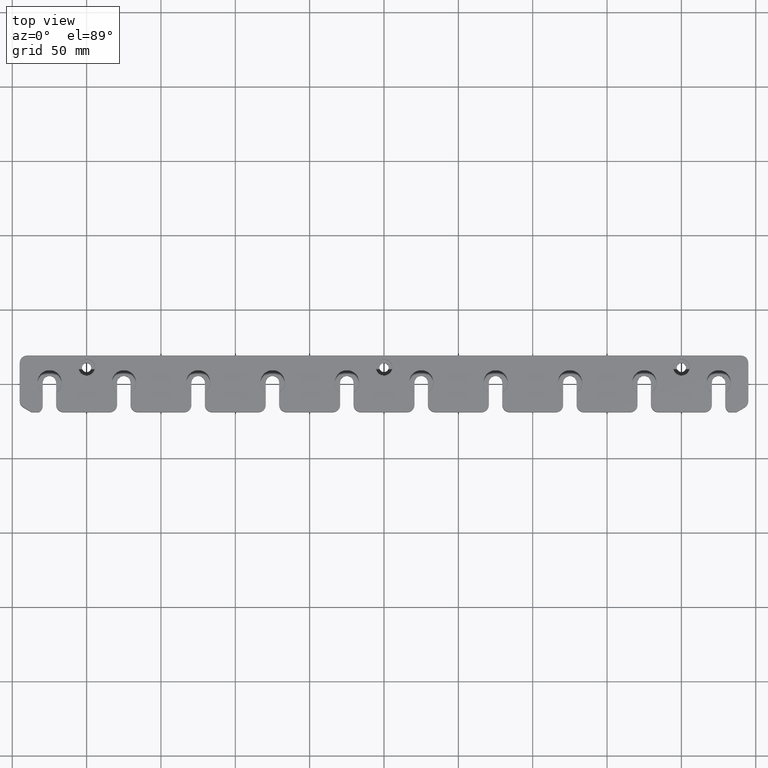
[diagram: clean part render]
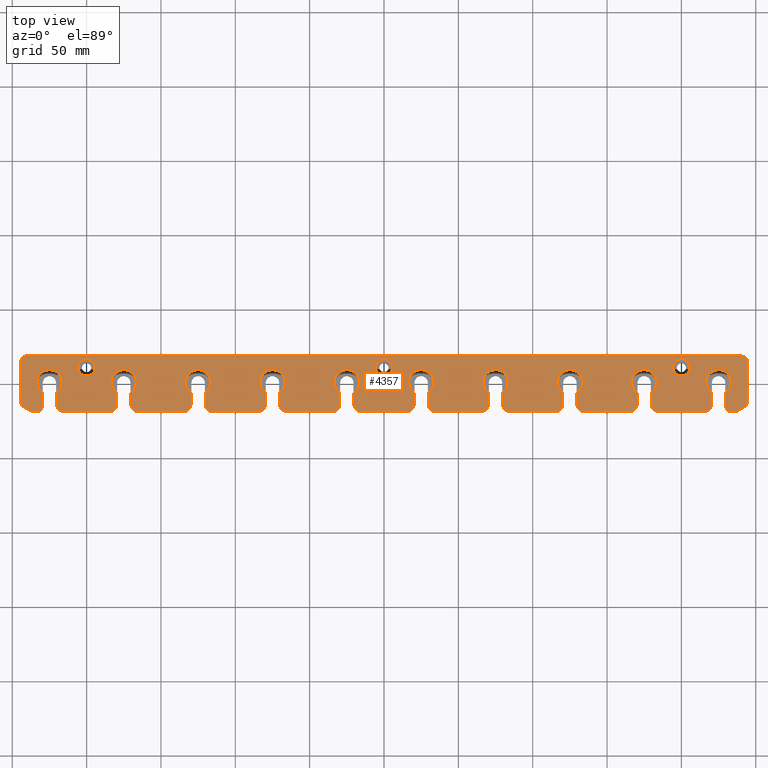
[diagram: same view with one face highlighted and labeled with its STEP entity id]
A machine part, top view. The second image highlights one B-rep face of the part: STEP entity #4357.
In plain terms, the highlighted planar face has unit normal (-0, 0, -1).
Its self-contained STEP definition (entity closure, byte-faithful):
#43 = CARTESIAN_POINT ( 'NONE',  ( -134.4999999999999716, -18.70000000000008811, 20.00000000000000000 ) ) ;
#54 = VERTEX_POINT ( 'NONE', #1759 ) ;
#60 = VERTEX_POINT ( 'NONE', #4454 ) ;
#75 = DIRECTION ( 'NONE',  ( -1.000000000000000000, 0.000000000000000000, 0.000000000000000000 ) ) ;
#94 = EDGE_CURVE ( 'NONE', #770, #3990, #2609, .T. ) ;
#98 = AXIS2_PLACEMENT_3D ( 'NONE', #6631, #5580, #2834 ) ;
#99 = CARTESIAN_POINT ( 'NONE',  ( -234.5000000000000000, -14.66987298107780546, 20.00000000000000000 ) ) ;
#105 = DIRECTION ( 'NONE',  ( -1.000000000000000000, 0.000000000000000000, 0.000000000000000000 ) ) ;
#110 = EDGE_CURVE ( 'NONE', #5151, #1189, #5787, .T. ) ;
#119 = LINE ( 'NONE', #6738, #3336 ) ;
#125 = ORIENTED_EDGE ( 'NONE', *, *, #6165, .T. ) ;
#135 = ORIENTED_EDGE ( 'NONE', *, *, #5148, .T. ) ;
#150 = VECTOR ( 'NONE', #6949, 1000.000000000000000 ) ;
#158 = CARTESIAN_POINT ( 'NONE',  ( 165.5000000000000000, -13.99999999999999822, 20.00000000000000000 ) ) ;
#160 = CARTESIAN_POINT ( 'NONE',  ( 115.5000000000000000, -18.70000000000008811, 20.00000000000000000 ) ) ;
#189 = CIRCLE ( 'NONE', #4071, 8.449999999999915801 ) ;
#194 = CARTESIAN_POINT ( 'NONE',  ( -165.4999999999999716, -13.99999999999999822, 20.00000000000000000 ) ) ;
#206 = LINE ( 'NONE', #893, #4278 ) ;
#209 = CARTESIAN_POINT ( 'NONE',  ( 179.7999999999998693, -5.954315207121470443, 20.00000000000000000 ) ) ;
#221 = CARTESIAN_POINT ( 'NONE',  ( 129.7999999999998977, -14.00000000000001243, 20.00000000000000000 ) ) ;
#235 = VERTEX_POINT ( 'NONE', #6228 ) ;
#243 = AXIS2_PLACEMENT_3D ( 'NONE', #1725, #4499, #1256 ) ;
#267 = CARTESIAN_POINT ( 'NONE',  ( 120.2000000000000313, 1.000000000000719425, 20.00000000000000000 ) ) ;
#276 = VECTOR ( 'NONE', #3130, 1000.000000000000000 ) ;
#299 = CARTESIAN_POINT ( 'NONE',  ( -174.9999999999998863, 1.000000000000000888, 20.00000000000000000 ) ) ;
#373 = CARTESIAN_POINT ( 'NONE',  ( 129.7999999999998977, -14.00000000000001243, 20.00000000000000000 ) ) ;
#398 = AXIS2_PLACEMENT_3D ( 'NONE', #299, #6719, #1395 ) ;
#403 = VERTEX_POINT ( 'NONE', #1567 ) ;
#407 = ORIENTED_EDGE ( 'NONE', *, *, #2469, .T. ) ;
#411 = VECTOR ( 'NONE', #1213, 1000.000000000000000 ) ;
#412 = EDGE_CURVE ( 'NONE', #1292, #3824, #3267, .T. ) ;
#437 = ORIENTED_EDGE ( 'NONE', *, *, #1007, .T. ) ;
#441 = ORIENTED_EDGE ( 'NONE', *, *, #1264, .T. ) ;
#444 = DIRECTION ( 'NONE',  ( -1.000000000000000000, 0.000000000000000000, 0.000000000000000000 ) ) ;
#448 = VECTOR ( 'NONE', #3409, 1000.000000000000000 ) ;
#460 = VERTEX_POINT ( 'NONE', #4671 ) ;
#478 = CARTESIAN_POINT ( 'NONE',  ( 179.7999999999998693, -14.00000000000000533, 20.00000000000000000 ) ) ;
#490 = VERTEX_POINT ( 'NONE', #552 ) ;
#500 = DIRECTION ( 'NONE',  ( 1.387778780781445676E-15, -1.000000000000000000, 0.000000000000000000 ) ) ;
#510 = ORIENTED_EDGE ( 'NONE', *, *, #2898, .T. ) ;
#512 = CARTESIAN_POINT ( 'NONE',  ( -124.9999999999998863, 1.000000000000000888, 20.00000000000000000 ) ) ;
#541 = VECTOR ( 'NONE', #5789, 1000.000000000000000 ) ;
#544 = EDGE_CURVE ( 'NONE', #460, #460, #567, .T. ) ;
#549 = CIRCLE ( 'NONE', #729, 8.449999999999901590 ) ;
#552 = CARTESIAN_POINT ( 'NONE',  ( -215.5000000000000000, -18.70000000000008811, 20.00000000000000000 ) ) ;
#567 = CIRCLE ( 'NONE', #1409, 5.799999999999972289 ) ;
#568 = DIRECTION ( 'NONE',  ( -0.000000000000000000, -0.000000000000000000, -1.000000000000000000 ) ) ;
#577 = FACE_BOUND ( 'NONE', #5188, .T. ) ;
#582 = EDGE_CURVE ( 'NONE', #54, #1675, #2355, .T. ) ;
#592 = CARTESIAN_POINT ( 'NONE',  ( -34.49999999999997158, -13.99999999999999822, 20.00000000000000000 ) ) ;
#595 = ORIENTED_EDGE ( 'NONE', *, *, #4951, .T. ) ;
#597 = EDGE_CURVE ( 'NONE', #6341, #490, #1496, .T. ) ;
#605 = EDGE_CURVE ( 'NONE', #3787, #5324, #2930, .T. ) ;
#606 = LINE ( 'NONE', #1002, #5260 ) ;
#611 = DIRECTION ( 'NONE',  ( 0.8660254037844399289, -0.4999999999999977240, 0.000000000000000000 ) ) ;
#623 = EDGE_CURVE ( 'NONE', #6749, #4426, #2759, .T. ) ;
#633 = CARTESIAN_POINT ( 'NONE',  ( 115.5000000000000000, -13.99999999999999822, 20.00000000000000000 ) ) ;
#642 = AXIS2_PLACEMENT_3D ( 'NONE', #6758, #3572, #1986 ) ;
#695 = ORIENTED_EDGE ( 'NONE', *, *, #5950, .T. ) ;
#696 = EDGE_CURVE ( 'NONE', #4579, #6341, #1658, .T. ) ;
#700 = ORIENTED_EDGE ( 'NONE', *, *, #6522, .T. ) ;
#703 = CARTESIAN_POINT ( 'NONE',  ( -65.49999999999997158, -13.99999999999999822, 20.00000000000000000 ) ) ;
#727 = EDGE_CURVE ( 'NONE', #5279, #6694, #4116, .T. ) ;
#729 = AXIS2_PLACEMENT_3D ( 'NONE', #5462, #568, #75 ) ;
#736 = DIRECTION ( 'NONE',  ( -1.000000000000000000, -2.583630708901576278E-15, 0.000000000000000000 ) ) ;
#755 = LINE ( 'NONE', #2965, #3464 ) ;
#756 = DIRECTION ( 'NONE',  ( 0.000000000000000000, 0.000000000000000000, 1.000000000000000000 ) ) ;
#758 = CARTESIAN_POINT ( 'NONE',  ( 29.79999999999990479, -14.00000000000000711, 20.00000000000000000 ) ) ;
#770 = VERTEX_POINT ( 'NONE', #1421 ) ;
#795 = VERTEX_POINT ( 'NONE', #2982 ) ;
#835 = VERTEX_POINT ( 'NONE', #3517 ) ;
#870 = DIRECTION ( 'NONE',  ( 0.000000000000000000, -1.000000000000000000, 0.000000000000000000 ) ) ;
#893 = CARTESIAN_POINT ( 'NONE',  ( -224.9999999999999716, -18.70000000000008811, 20.00000000000000000 ) ) ;
#917 = AXIS2_PLACEMENT_3D ( 'NONE', #703, #3428, #4495 ) ;
#923 = DIRECTION ( 'NONE',  ( 1.000000000000000000, 0.000000000000000000, 0.000000000000000000 ) ) ;
#924 = CARTESIAN_POINT ( 'NONE',  ( -242.3500000000000512, -15.56476589832181823, 20.00000000000000000 ) ) ;
#929 = DIRECTION ( 'NONE',  ( -0.000000000000000000, -0.000000000000000000, -1.000000000000000000 ) ) ;
#949 = CARTESIAN_POINT ( 'NONE',  ( 79.79999999999989768, -14.00000000000000888, 20.00000000000000000 ) ) ;
#968 = CARTESIAN_POINT ( 'NONE',  ( -224.9999999999999716, -18.70000000000008811, 20.00000000000000000 ) ) ;
#995 = ORIENTED_EDGE ( 'NONE', *, *, #3535, .T. ) ;
#1001 = CARTESIAN_POINT ( 'NONE',  ( -165.4999999999999716, -18.70000000000008811, 20.00000000000000000 ) ) ;
#1002 = CARTESIAN_POINT ( 'NONE',  ( -129.7999999999999261, 1.000000000000133005, 20.00000000000000000 ) ) ;
#1003 = DIRECTION ( 'NONE',  ( -1.000000000000000000, 0.000000000000000000, 0.000000000000000000 ) ) ;
#1004 = ORIENTED_EDGE ( 'NONE', *, *, #6708, .T. ) ;
#1005 = VERTEX_POINT ( 'NONE', #4820 ) ;
#1007 = EDGE_CURVE ( 'NONE', #3161, #2557, #3678, .T. ) ;
#1032 = CARTESIAN_POINT ( 'NONE',  ( -70.20000000000008811, -14.00000000000000533, 20.00000000000000000 ) ) ;
#1034 = ORIENTED_EDGE ( 'NONE', *, *, #3767, .T. ) ;
#1050 = VERTEX_POINT ( 'NONE', #5359 ) ;
#1081 = ORIENTED_EDGE ( 'NONE', *, *, #3142, .T. ) ;
#1107 = DIRECTION ( 'NONE',  ( -1.000000000000000000, -1.845450506358268545E-15, 0.000000000000000000 ) ) ;
#1125 = CARTESIAN_POINT ( 'NONE',  ( -240.0000000000000000, -11.49444650053487393, 20.00000000000000000 ) ) ;
#1130 = DIRECTION ( 'NONE',  ( 0.000000000000000000, 0.000000000000000000, 1.000000000000000000 ) ) ;
#1133 = DIRECTION ( 'NONE',  ( -0.000000000000000000, -0.000000000000000000, -1.000000000000000000 ) ) ;
#1151 = DIRECTION ( 'NONE',  ( 0.000000000000000000, 0.000000000000000000, 1.000000000000000000 ) ) ;
#1156 = VERTEX_POINT ( 'NONE', #6597 ) ;
#1162 = VERTEX_POINT ( 'NONE', #5479 ) ;
#1189 = VERTEX_POINT ( 'NONE', #1915 ) ;
#1192 = EDGE_CURVE ( 'NONE', #60, #3076, #5517, .T. ) ;
#1205 = VERTEX_POINT ( 'NONE', #5636 ) ;
#1213 = DIRECTION ( 'NONE',  ( 1.561251128379126385E-15, -1.000000000000000000, 0.000000000000000000 ) ) ;
#1216 = CARTESIAN_POINT ( 'NONE',  ( 70.20000000000011653, -13.99999999999998401, 20.00000000000000000 ) ) ;
#1217 = EDGE_CURVE ( 'NONE', #5443, #4349, #2431, .T. ) ;
#1242 = ORIENTED_EDGE ( 'NONE', *, *, #6938, .T. ) ;
#1243 = CARTESIAN_POINT ( 'NONE',  ( -224.9999999999999716, -18.70000000000008811, 20.00000000000000000 ) ) ;
#1254 = CARTESIAN_POINT ( 'NONE',  ( 170.2000000000001307, 1.000000000001097789, 20.00000000000000000 ) ) ;
#1256 = DIRECTION ( 'NONE',  ( -1.000000000000000000, -1.845450506358270122E-15, 0.000000000000000000 ) ) ;
#1257 = ORIENTED_EDGE ( 'NONE', *, *, #2807, .T. ) ;
#1262 = CARTESIAN_POINT ( 'NONE',  ( -70.20000000000010232, -5.954315207121450015, 20.00000000000000000 ) ) ;
#1264 = EDGE_CURVE ( 'NONE', #5324, #5695, #6004, .T. ) ;
#1266 = CIRCLE ( 'NONE', #4510, 4.700000000000093436 ) ;
#1276 = VERTEX_POINT ( 'NONE', #1344 ) ;
#1292 = VERTEX_POINT ( 'NONE', #2997 ) ;
#1310 = DIRECTION ( 'NONE',  ( -1.000000000000000000, -2.583630708901576278E-15, 0.000000000000000000 ) ) ;
#1336 = CARTESIAN_POINT ( 'NONE',  ( 20.20000000000002416, 1.000000000000511369, 20.00000000000000000 ) ) ;
#1344 = CARTESIAN_POINT ( 'NONE',  ( -120.2000000000001023, -14.00000000000000533, 20.00000000000000000 ) ) ;
#1390 = VECTOR ( 'NONE', #3673, 1000.000000000000000 ) ;
#1395 = DIRECTION ( 'NONE',  ( -1.000000000000000000, 0.000000000000000000, 0.000000000000000000 ) ) ;
#1409 = AXIS2_PLACEMENT_3D ( 'NONE', #2785, #1133, #6562 ) ;
#1421 = CARTESIAN_POINT ( 'NONE',  ( -170.2000000000001023, -14.00000000000001243, 20.00000000000000000 ) ) ;
#1436 = VERTEX_POINT ( 'NONE', #3577 ) ;
#1438 = CARTESIAN_POINT ( 'NONE',  ( 25.00000000000010658, 1.000000000000000888, 20.00000000000000000 ) ) ;
#1440 = EDGE_CURVE ( 'NONE', #2569, #3795, #5999, .T. ) ;
#1463 = CIRCLE ( 'NONE', #5780, 8.449999999999915801 ) ;
#1468 = DIRECTION ( 'NONE',  ( 1.387778780781445676E-15, -1.000000000000000000, 0.000000000000000000 ) ) ;
#1485 = EDGE_CURVE ( 'NONE', #1189, #4333, #6342, .T. ) ;
#1491 = CARTESIAN_POINT ( 'NONE',  ( -120.2000000000001023, -14.00000000000000533, 20.00000000000000000 ) ) ;
#1496 = CIRCLE ( 'NONE', #5725, 4.700000000000093436 ) ;
#1497 = CARTESIAN_POINT ( 'NONE',  ( -224.9999999999999716, -18.70000000000008811, 20.00000000000000000 ) ) ;
#1499 = CARTESIAN_POINT ( 'NONE',  ( -129.7999999999999261, -5.954315207121276821, 20.00000000000000000 ) ) ;
#1551 = ORIENTED_EDGE ( 'NONE', *, *, #582, .T. ) ;
#1567 = CARTESIAN_POINT ( 'NONE',  ( 220.2000000000001023, -5.954315207121276821, 20.00000000000000000 ) ) ;
#1569 = ORIENTED_EDGE ( 'NONE', *, *, #3290, .T. ) ;
#1602 = EDGE_CURVE ( 'NONE', #3990, #3707, #206, .T. ) ;
#1608 = CIRCLE ( 'NONE', #6524, 4.700000000000093436 ) ;
#1620 = VECTOR ( 'NONE', #5917, 1000.000000000000000 ) ;
#1625 = VERTEX_POINT ( 'NONE', #4119 ) ;
#1627 = EDGE_CURVE ( 'NONE', #3707, #2789, #4019, .T. ) ;
#1632 = VERTEX_POINT ( 'NONE', #3631 ) ;
#1633 = ORIENTED_EDGE ( 'NONE', *, *, #4739, .T. ) ;
#1645 = ORIENTED_EDGE ( 'NONE', *, *, #2540, .T. ) ;
#1654 = DIRECTION ( 'NONE',  ( 0.000000000000000000, 0.000000000000000000, 1.000000000000000000 ) ) ;
#1658 = LINE ( 'NONE', #1797, #2347 ) ;
#1663 = ORIENTED_EDGE ( 'NONE', *, *, #1192, .T. ) ;
#1675 = VERTEX_POINT ( 'NONE', #4196 ) ;
#1676 = EDGE_CURVE ( 'NONE', #6797, #3161, #6489, .T. ) ;
#1680 = VERTEX_POINT ( 'NONE', #2542 ) ;
#1688 = ORIENTED_EDGE ( 'NONE', *, *, #4972, .T. ) ;
#1690 = EDGE_CURVE ( 'NONE', #3956, #1276, #3754, .T. ) ;
#1705 = VERTEX_POINT ( 'NONE', #4218 ) ;
#1724 = VECTOR ( 'NONE', #6114, 1000.000000000000000 ) ;
#1725 = CARTESIAN_POINT ( 'NONE',  ( -15.50000000000000000, -13.99999999999999822, 20.00000000000000000 ) ) ;
#1729 = CIRCLE ( 'NONE', #2536, 4.700000000000093436 ) ;
#1747 = EDGE_CURVE ( 'NONE', #3266, #6749, #3090, .T. ) ;
#1759 = CARTESIAN_POINT ( 'NONE',  ( -34.49999999999997158, -18.70000000000008811, 20.00000000000000000 ) ) ;
#1786 = VECTOR ( 'NONE', #1824, 1000.000000000000000 ) ;
#1797 = CARTESIAN_POINT ( 'NONE',  ( -220.2000000000001023, -14.00000000000000533, 20.00000000000000000 ) ) ;
#1824 = DIRECTION ( 'NONE',  ( -1.387778780781445676E-15, 1.000000000000000000, 0.000000000000000000 ) ) ;
#1831 = DIRECTION ( 'NONE',  ( -1.000000000000000000, 0.000000000000000000, 0.000000000000000000 ) ) ;
#1840 = CARTESIAN_POINT ( 'NONE',  ( -224.9999999999999716, -18.70000000000008811, 20.00000000000000000 ) ) ;
#1848 = FACE_BOUND ( 'NONE', #6306, .T. ) ;
#1855 = CARTESIAN_POINT ( 'NONE',  ( 242.3500000000000227, -15.56476589832179336, 20.00000000000000000 ) ) ;
#1858 = EDGE_CURVE ( 'NONE', #795, #4579, #549, .T. ) ;
#1873 = DIRECTION ( 'NONE',  ( 0.000000000000000000, 0.000000000000000000, 1.000000000000000000 ) ) ;
#1891 = CARTESIAN_POINT ( 'NONE',  ( -179.7999999999998977, -13.99999999999999822, 20.00000000000000000 ) ) ;
#1896 = VERTEX_POINT ( 'NONE', #4417 ) ;
#1915 = CARTESIAN_POINT ( 'NONE',  ( 29.79999999999990479, -14.00000000000000711, 20.00000000000000000 ) ) ;
#1926 = CARTESIAN_POINT ( 'NONE',  ( 15.50000000000002487, -18.70000000000008811, 20.00000000000000000 ) ) ;
#1929 = VECTOR ( 'NONE', #4013, 1000.000000000000000 ) ;
#1950 = CARTESIAN_POINT ( 'NONE',  ( -224.9999999999999716, 1.000000000000000888, 20.00000000000000000 ) ) ;
#1958 = CARTESIAN_POINT ( 'NONE',  ( -179.7999999999998977, 1.000000000000000888, 20.00000000000000000 ) ) ;
#1968 = VERTEX_POINT ( 'NONE', #2395 ) ;
#1984 = DIRECTION ( 'NONE',  ( 0.000000000000000000, 1.000000000000000000, 0.000000000000000000 ) ) ;
#1986 = DIRECTION ( 'NONE',  ( -1.000000000000000000, 0.000000000000000000, 0.000000000000000000 ) ) ;
#2006 = CARTESIAN_POINT ( 'NONE',  ( 184.5000000000000000, -13.99999999999999822, 20.00000000000000000 ) ) ;
#2017 = LINE ( 'NONE', #221, #1929 ) ;
#2025 = VECTOR ( 'NONE', #500, 1000.000000000000000 ) ;
#2031 = ORIENTED_EDGE ( 'NONE', *, *, #6872, .T. ) ;
#2058 = DIRECTION ( 'NONE',  ( 1.387778780781445676E-15, -1.000000000000000000, 0.000000000000000000 ) ) ;
#2064 = EDGE_CURVE ( 'NONE', #1156, #1680, #6163, .T. ) ;
#2065 = LINE ( 'NONE', #1336, #448 ) ;
#2081 = DIRECTION ( 'NONE',  ( 0.000000000000000000, 0.000000000000000000, 1.000000000000000000 ) ) ;
#2089 = VECTOR ( 'NONE', #2292, 1000.000000000000000 ) ;
#2092 = VECTOR ( 'NONE', #6184, 1000.000000000000000 ) ;
#2154 = CARTESIAN_POINT ( 'NONE',  ( -224.9999999999999716, -18.70000000000008811, 20.00000000000000000 ) ) ;
#2211 = DIRECTION ( 'NONE',  ( -0.000000000000000000, -0.000000000000000000, -1.000000000000000000 ) ) ;
#2255 = LINE ( 'NONE', #2154, #5519 ) ;
#2278 = DIRECTION ( 'NONE',  ( -1.000000000000000000, -1.845450506358268545E-15, 0.000000000000000000 ) ) ;
#2292 = DIRECTION ( 'NONE',  ( 1.000000000000000000, 0.000000000000000000, 0.000000000000000000 ) ) ;
#2298 = CARTESIAN_POINT ( 'NONE',  ( 15.50000000000002132, -13.99999999999999822, 20.00000000000000000 ) ) ;
#2299 = ORIENTED_EDGE ( 'NONE', *, *, #412, .T. ) ;
#2347 = VECTOR ( 'NONE', #5054, 1000.000000000000000 ) ;
#2355 = CIRCLE ( 'NONE', #2723, 4.700000000000093436 ) ;
#2360 = CARTESIAN_POINT ( 'NONE',  ( 65.50000000000001421, -13.99999999999999822, 20.00000000000000000 ) ) ;
#2380 = CIRCLE ( 'NONE', #98, 4.700000000000093436 ) ;
#2386 = CARTESIAN_POINT ( 'NONE',  ( 179.7999999999998693, -14.00000000000000533, 20.00000000000000000 ) ) ;
#2387 = DIRECTION ( 'NONE',  ( -2.775557561562891351E-15, 1.000000000000000000, 0.000000000000000000 ) ) ;
#2388 = VERTEX_POINT ( 'NONE', #1262 ) ;
#2395 = CARTESIAN_POINT ( 'NONE',  ( -179.7999999999998977, -5.954315207121276821, 20.00000000000000000 ) ) ;
#2402 = CIRCLE ( 'NONE', #3497, 4.700000000000093436 ) ;
#2416 = VECTOR ( 'NONE', #5197, 1000.000000000000000 ) ;
#2420 = LINE ( 'NONE', #3018, #2821 ) ;
#2421 = ORIENTED_EDGE ( 'NONE', *, *, #4284, .T. ) ;
#2423 = EDGE_CURVE ( 'NONE', #5362, #3266, #2402, .T. ) ;
#2430 = VERTEX_POINT ( 'NONE', #2386 ) ;
#2431 = CIRCLE ( 'NONE', #3184, 4.700000000000093436 ) ;
#2451 = EDGE_CURVE ( 'NONE', #3235, #1705, #2065, .T. ) ;
#2461 = EDGE_CURVE ( 'NONE', #5695, #5456, #1463, .T. ) ;
#2469 = EDGE_CURVE ( 'NONE', #4914, #5279, #6814, .T. ) ;
#2474 = ORIENTED_EDGE ( 'NONE', *, *, #5437, .T. ) ;
#2491 = ORIENTED_EDGE ( 'NONE', *, *, #6732, .T. ) ;
#2494 = LINE ( 'NONE', #4514, #6821 ) ;
#2505 = AXIS2_PLACEMENT_3D ( 'NONE', #633, #3348, #105 ) ;
#2528 = DIRECTION ( 'NONE',  ( 0.000000000000000000, 0.000000000000000000, 1.000000000000000000 ) ) ;
#2536 = AXIS2_PLACEMENT_3D ( 'NONE', #3335, #3907, #4459 ) ;
#2540 = EDGE_CURVE ( 'NONE', #4745, #1968, #3310, .T. ) ;
#2542 = CARTESIAN_POINT ( 'NONE',  ( -232.0817204025684646, -18.70000000000008811, 20.00000000000000000 ) ) ;
#2547 = CARTESIAN_POINT ( 'NONE',  ( -224.9999999999999716, -18.70000000000008811, 20.00000000000000000 ) ) ;
#2552 = ORIENTED_EDGE ( 'NONE', *, *, #4049, .T. ) ;
#2557 = VERTEX_POINT ( 'NONE', #924 ) ;
#2565 = CARTESIAN_POINT ( 'NONE',  ( -134.4999999999999716, -13.99999999999999822, 20.00000000000000000 ) ) ;
#2569 = VERTEX_POINT ( 'NONE', #3087 ) ;
#2579 = CARTESIAN_POINT ( 'NONE',  ( -20.20000000000009877, -5.954315207121444686, 20.00000000000000000 ) ) ;
#2581 = LINE ( 'NONE', #4051, #6414 ) ;
#2609 = CIRCLE ( 'NONE', #5422, 4.700000000000093436 ) ;
#2617 = EDGE_CURVE ( 'NONE', #2789, #2638, #606, .T. ) ;
#2635 = LINE ( 'NONE', #3659, #4072 ) ;
#2638 = VERTEX_POINT ( 'NONE', #1499 ) ;
#2641 = EDGE_CURVE ( 'NONE', #3795, #3787, #5652, .T. ) ;
#2681 = CARTESIAN_POINT ( 'NONE',  ( 194.2000000000001023, 11.00000000000011546, 20.00000000000000000 ) ) ;
#2709 = VERTEX_POINT ( 'NONE', #2720 ) ;
#2716 = CIRCLE ( 'NONE', #917, 4.700000000000093436 ) ;
#2718 = ORIENTED_EDGE ( 'NONE', *, *, #5156, .T. ) ;
#2720 = CARTESIAN_POINT ( 'NONE',  ( -115.4999999999999858, -18.70000000000008811, 20.00000000000000000 ) ) ;
#2723 = AXIS2_PLACEMENT_3D ( 'NONE', #592, #5983, #5941 ) ;
#2759 = CIRCLE ( 'NONE', #5980, 4.700000000000093436 ) ;
#2762 = EDGE_CURVE ( 'NONE', #1162, #4914, #4742, .T. ) ;
#2766 = DIRECTION ( 'NONE',  ( -1.000000000000000000, 0.000000000000000000, 0.000000000000000000 ) ) ;
#2781 = LINE ( 'NONE', #2547, #2954 ) ;
#2785 = CARTESIAN_POINT ( 'NONE',  ( -200.0000000000000000, 11.00000000000004263, 20.00000000000000000 ) ) ;
#2789 = VERTEX_POINT ( 'NONE', #5383 ) ;
#2807 = EDGE_CURVE ( 'NONE', #2557, #1156, #3146, .T. ) ;
#2821 = VECTOR ( 'NONE', #2058, 1000.000000000000000 ) ;
#2831 = EDGE_CURVE ( 'NONE', #4349, #403, #4405, .T. ) ;
#2834 = DIRECTION ( 'NONE',  ( -1.000000000000000000, -1.845450506358268545E-15, 0.000000000000000000 ) ) ;
#2841 = DIRECTION ( 'NONE',  ( 0.000000000000000000, 0.000000000000000000, 1.000000000000000000 ) ) ;
#2862 = ORIENTED_EDGE ( 'NONE', *, *, #1747, .T. ) ;
#2898 = EDGE_CURVE ( 'NONE', #4586, #235, #5813, .T. ) ;
#2914 = ORIENTED_EDGE ( 'NONE', *, *, #1858, .T. ) ;
#2915 = CIRCLE ( 'NONE', #6718, 5.799999999999916334 ) ;
#2920 = CARTESIAN_POINT ( 'NONE',  ( 20.20000000000010942, -13.99999999999998757, 20.00000000000000000 ) ) ;
#2929 = EDGE_CURVE ( 'NONE', #5507, #835, #2716, .T. ) ;
#2930 = CIRCLE ( 'NONE', #2505, 4.700000000000093436 ) ;
#2932 = CIRCLE ( 'NONE', #398, 8.449999999999901590 ) ;
#2947 = LINE ( 'NONE', #5344, #150 ) ;
#2954 = VECTOR ( 'NONE', #923, 1000.000000000000000 ) ;
#2955 = CARTESIAN_POINT ( 'NONE',  ( 34.49999999999999289, -13.99999999999999822, 20.00000000000000000 ) ) ;
#2962 = CARTESIAN_POINT ( 'NONE',  ( 134.5000000000000000, -13.99999999999999822, 20.00000000000000000 ) ) ;
#2965 = CARTESIAN_POINT ( 'NONE',  ( 70.20000000000010232, 1.000000000000820233, 20.00000000000000000 ) ) ;
#2967 = CARTESIAN_POINT ( 'NONE',  ( 229.7999999999999261, -14.66987298107782500, 20.00000000000000000 ) ) ;
#2980 = DIRECTION ( 'NONE',  ( 0.000000000000000000, 0.000000000000000000, 1.000000000000000000 ) ) ;
#2982 = CARTESIAN_POINT ( 'NONE',  ( -229.7999999999999261, -5.954315207121275044, 20.00000000000000000 ) ) ;
#2987 = VERTEX_POINT ( 'NONE', #2681 ) ;
#2993 = LINE ( 'NONE', #5764, #541 ) ;
#2997 = CARTESIAN_POINT ( 'NONE',  ( 170.2000000000001023, -5.954315207121276821, 20.00000000000000000 ) ) ;
#3002 = ORIENTED_EDGE ( 'NONE', *, *, #4372, .T. ) ;
#3018 = CARTESIAN_POINT ( 'NONE',  ( -70.20000000000008811, -14.00000000000000533, 20.00000000000000000 ) ) ;
#3033 = CIRCLE ( 'NONE', #5747, 8.449999999999915801 ) ;
#3054 = CARTESIAN_POINT ( 'NONE',  ( 34.49999999999999289, -18.70000000000008811, 20.00000000000000000 ) ) ;
#3060 = ORIENTED_EDGE ( 'NONE', *, *, #110, .T. ) ;
#3064 = VECTOR ( 'NONE', #3324, 1000.000000000000000 ) ;
#3076 = VERTEX_POINT ( 'NONE', #1926 ) ;
#3079 = DIRECTION ( 'NONE',  ( 0.000000000000000000, 0.000000000000000000, 1.000000000000000000 ) ) ;
#3082 = EDGE_CURVE ( 'NONE', #6694, #1005, #2635, .T. ) ;
#3084 = DIRECTION ( 'NONE',  ( 1.000000000000000000, 0.000000000000000000, 0.000000000000000000 ) ) ;
#3087 = CARTESIAN_POINT ( 'NONE',  ( 79.79999999999989768, -14.00000000000000888, 20.00000000000000000 ) ) ;
#3090 = LINE ( 'NONE', #968, #2416 ) ;
#3106 = CIRCLE ( 'NONE', #5836, 4.700000000000089884 ) ;
#3109 = CARTESIAN_POINT ( 'NONE',  ( -120.2000000000001165, -5.954315207121450015, 20.00000000000000000 ) ) ;
#3130 = DIRECTION ( 'NONE',  ( 2.775557561562891351E-15, -1.000000000000000000, 0.000000000000000000 ) ) ;
#3138 = CIRCLE ( 'NONE', #5222, 4.700000000000093436 ) ;
#3139 = CARTESIAN_POINT ( 'NONE',  ( -24.99999999999988276, 1.000000000000000888, 20.00000000000000000 ) ) ;
#3142 = EDGE_CURVE ( 'NONE', #6190, #6797, #6951, .T. ) ;
#3146 = LINE ( 'NONE', #5960, #4500 ) ;
#3147 = ORIENTED_EDGE ( 'NONE', *, *, #6177, .T. ) ;
#3161 = VERTEX_POINT ( 'NONE', #3855 ) ;
#3170 = DIRECTION ( 'NONE',  ( -1.000000000000000000, 0.000000000000000000, 0.000000000000000000 ) ) ;
#3172 = CIRCLE ( 'NONE', #3974, 8.449999999999901590 ) ;
#3184 = AXIS2_PLACEMENT_3D ( 'NONE', #3440, #4034, #5098 ) ;
#3217 = ORIENTED_EDGE ( 'NONE', *, *, #2831, .T. ) ;
#3230 = DIRECTION ( 'NONE',  ( -1.000000000000000000, 0.000000000000000000, 0.000000000000000000 ) ) ;
#3235 = VERTEX_POINT ( 'NONE', #2920 ) ;
#3262 = CARTESIAN_POINT ( 'NONE',  ( -224.9999999999999716, -18.70000000000008811, 20.00000000000000000 ) ) ;
#3266 = VERTEX_POINT ( 'NONE', #3981 ) ;
#3267 = CIRCLE ( 'NONE', #5025, 8.449999999999901590 ) ;
#3290 = EDGE_CURVE ( 'NONE', #5998, #1896, #755, .T. ) ;
#3310 = LINE ( 'NONE', #1958, #3999 ) ;
#3315 = VERTEX_POINT ( 'NONE', #4186 ) ;
#3317 = ORIENTED_EDGE ( 'NONE', *, *, #2064, .T. ) ;
#3324 = DIRECTION ( 'NONE',  ( -2.775557561562891351E-15, 1.000000000000000000, 0.000000000000000000 ) ) ;
#3332 = ORIENTED_EDGE ( 'NONE', *, *, #597, .T. ) ;
#3333 = VECTOR ( 'NONE', #3418, 1000.000000000000000 ) ;
#3335 = CARTESIAN_POINT ( 'NONE',  ( -84.49999999999997158, -13.99999999999999822, 20.00000000000000000 ) ) ;
#3336 = VECTOR ( 'NONE', #3555, 1000.000000000000000 ) ;
#3341 = DIRECTION ( 'NONE',  ( -1.000000000000000000, 0.000000000000000000, 0.000000000000000000 ) ) ;
#3348 = DIRECTION ( 'NONE',  ( 0.000000000000000000, 0.000000000000000000, 1.000000000000000000 ) ) ;
#3361 = EDGE_CURVE ( 'NONE', #2430, #3992, #1608, .T. ) ;
#3389 = CARTESIAN_POINT ( 'NONE',  ( 225.0000000000001137, 1.000000000000000888, 20.00000000000000000 ) ) ;
#3398 = EDGE_CURVE ( 'NONE', #3315, #3315, #5639, .T. ) ;
#3401 = AXIS2_PLACEMENT_3D ( 'NONE', #2565, #3079, #6245 ) ;
#3403 = VERTEX_POINT ( 'NONE', #3592 ) ;
#3405 = LINE ( 'NONE', #6779, #276 ) ;
#3409 = DIRECTION ( 'NONE',  ( -2.081668171172168513E-15, 1.000000000000000000, 0.000000000000000000 ) ) ;
#3418 = DIRECTION ( 'NONE',  ( 1.000000000000000000, 0.000000000000000000, 0.000000000000000000 ) ) ;
#3428 = DIRECTION ( 'NONE',  ( 0.000000000000000000, 0.000000000000000000, 1.000000000000000000 ) ) ;
#3440 = CARTESIAN_POINT ( 'NONE',  ( 215.5000000000000000, -13.99999999999999822, 20.00000000000000000 ) ) ;
#3458 = ORIENTED_EDGE ( 'NONE', *, *, #2451, .T. ) ;
#3464 = VECTOR ( 'NONE', #2387, 1000.000000000000000 ) ;
#3470 = DIRECTION ( 'NONE',  ( 0.000000000000000000, 0.000000000000000000, 1.000000000000000000 ) ) ;
#3485 = EDGE_CURVE ( 'NONE', #1005, #1625, #1266, .T. ) ;
#3488 = CARTESIAN_POINT ( 'NONE',  ( 120.2000000000001023, -13.99999999999998757, 20.00000000000000000 ) ) ;
#3497 = AXIS2_PLACEMENT_3D ( 'NONE', #2962, #4052, #1310 ) ;
#3510 = VERTEX_POINT ( 'NONE', #5323 ) ;
#3517 = CARTESIAN_POINT ( 'NONE',  ( -65.49999999999997158, -18.70000000000008811, 20.00000000000000000 ) ) ;
#3535 = EDGE_CURVE ( 'NONE', #1050, #4745, #3138, .T. ) ;
#3555 = DIRECTION ( 'NONE',  ( -1.387778780781445676E-15, 1.000000000000000000, 0.000000000000000000 ) ) ;
#3558 = ORIENTED_EDGE ( 'NONE', *, *, #1485, .T. ) ;
#3564 = ORIENTED_EDGE ( 'NONE', *, *, #1690, .T. ) ;
#3572 = DIRECTION ( 'NONE',  ( -0.000000000000000000, -0.000000000000000000, -1.000000000000000000 ) ) ;
#3577 = CARTESIAN_POINT ( 'NONE',  ( -84.49999999999997158, -18.70000000000008811, 20.00000000000000000 ) ) ;
#3592 = CARTESIAN_POINT ( 'NONE',  ( -170.2000000000001307, -5.954315207121467779, 20.00000000000000000 ) ) ;
#3602 = ORIENTED_EDGE ( 'NONE', *, *, #3398, .T. ) ;
#3618 = LINE ( 'NONE', #1254, #4644 ) ;
#3622 = CARTESIAN_POINT ( 'NONE',  ( -224.9999999999999716, -18.70000000000008811, 20.00000000000000000 ) ) ;
#3631 = CARTESIAN_POINT ( 'NONE',  ( -29.79999999999990123, -5.954315207121283926, 20.00000000000000000 ) ) ;
#3635 = ORIENTED_EDGE ( 'NONE', *, *, #544, .T. ) ;
#3644 = CARTESIAN_POINT ( 'NONE',  ( -240.0000000000000000, 18.70000000000008811, 20.00000000000000000 ) ) ;
#3652 = ORIENTED_EDGE ( 'NONE', *, *, #1440, .T. ) ;
#3655 = DIRECTION ( 'NONE',  ( -1.000000000000000000, 0.000000000000000000, 0.000000000000000000 ) ) ;
#3659 = CARTESIAN_POINT ( 'NONE',  ( 244.7000000000000739, 1.000000000000000888, 20.00000000000000000 ) ) ;
#3661 = LINE ( 'NONE', #949, #6244 ) ;
#3663 = CARTESIAN_POINT ( 'NONE',  ( -224.9999999999999716, -18.70000000000008811, 20.00000000000000000 ) ) ;
#3673 = DIRECTION ( 'NONE',  ( 1.000000000000000000, 0.000000000000000000, 0.000000000000000000 ) ) ;
#3678 = CIRCLE ( 'NONE', #4040, 4.700000000000093436 ) ;
#3690 = EDGE_CURVE ( 'NONE', #235, #2388, #6866, .T. ) ;
#3707 = VERTEX_POINT ( 'NONE', #43 ) ;
#3754 = LINE ( 'NONE', #1491, #4191 ) ;
#3767 = EDGE_CURVE ( 'NONE', #4138, #60, #6455, .T. ) ;
#3787 = VERTEX_POINT ( 'NONE', #160 ) ;
#3795 = VERTEX_POINT ( 'NONE', #6030 ) ;
#3811 = EDGE_CURVE ( 'NONE', #1276, #2709, #2380, .T. ) ;
#3820 = CARTESIAN_POINT ( 'NONE',  ( 84.49999999999998579, -13.99999999999999822, 20.00000000000000000 ) ) ;
#3824 = VERTEX_POINT ( 'NONE', #209 ) ;
#3827 = VECTOR ( 'NONE', #3084, 1000.000000000000000 ) ;
#3855 = CARTESIAN_POINT ( 'NONE',  ( -244.7000000000000739, -11.49444650053487393, 20.00000000000000000 ) ) ;
#3866 = ORIENTED_EDGE ( 'NONE', *, *, #5664, .T. ) ;
#3887 = CARTESIAN_POINT ( 'NONE',  ( 29.79999999999989413, -5.954315207121442022, 20.00000000000000000 ) ) ;
#3890 = ORIENTED_EDGE ( 'NONE', *, *, #2423, .T. ) ;
#3907 = DIRECTION ( 'NONE',  ( 0.000000000000000000, 0.000000000000000000, 1.000000000000000000 ) ) ;
#3929 = EDGE_CURVE ( 'NONE', #490, #1050, #2781, .T. ) ;
#3947 = CARTESIAN_POINT ( 'NONE',  ( 240.0000000000000000, -11.49444650053487393, 20.00000000000000000 ) ) ;
#3956 = VERTEX_POINT ( 'NONE', #3109 ) ;
#3967 = CARTESIAN_POINT ( 'NONE',  ( 242.3500000000000227, -15.56476589832178803, 20.00000000000000000 ) ) ;
#3974 = AXIS2_PLACEMENT_3D ( 'NONE', #512, #4833, #5900 ) ;
#3980 = DIRECTION ( 'NONE',  ( 0.000000000000000000, 0.000000000000000000, 1.000000000000000000 ) ) ;
#3981 = CARTESIAN_POINT ( 'NONE',  ( 134.5000000000000000, -18.70000000000008811, 20.00000000000000000 ) ) ;
#3990 = VERTEX_POINT ( 'NONE', #1001 ) ;
#3992 = VERTEX_POINT ( 'NONE', #6250 ) ;
#3998 = DIRECTION ( 'NONE',  ( -1.000000000000000000, 7.012711924161421100E-15, 0.000000000000000000 ) ) ;
#3999 = VECTOR ( 'NONE', #1984, 1000.000000000000000 ) ;
#4010 = LINE ( 'NONE', #1497, #3827 ) ;
#4013 = DIRECTION ( 'NONE',  ( 2.775557561562891351E-15, -1.000000000000000000, 0.000000000000000000 ) ) ;
#4019 = CIRCLE ( 'NONE', #3401, 4.700000000000093436 ) ;
#4034 = DIRECTION ( 'NONE',  ( 0.000000000000000000, 0.000000000000000000, 1.000000000000000000 ) ) ;
#4040 = AXIS2_PLACEMENT_3D ( 'NONE', #1125, #1654, #5931 ) ;
#4049 = EDGE_CURVE ( 'NONE', #5483, #4138, #2947, .T. ) ;
#4051 = CARTESIAN_POINT ( 'NONE',  ( -29.79999999999990834, 1.000000000000271783, 20.00000000000000000 ) ) ;
#4052 = DIRECTION ( 'NONE',  ( 0.000000000000000000, 0.000000000000000000, 1.000000000000000000 ) ) ;
#4060 = ORIENTED_EDGE ( 'NONE', *, *, #4214, .T. ) ;
#4066 = PLANE ( 'NONE',  #4825 ) ;
#4071 = AXIS2_PLACEMENT_3D ( 'NONE', #3139, #5234, #444 ) ;
#4072 = VECTOR ( 'NONE', #4220, 1000.000000000000000 ) ;
#4089 = DIRECTION ( 'NONE',  ( -1.000000000000000000, 0.000000000000000000, 0.000000000000000000 ) ) ;
#4091 = DIRECTION ( 'NONE',  ( -1.000000000000000000, 0.000000000000000000, 0.000000000000000000 ) ) ;
#4098 = DIRECTION ( 'NONE',  ( -0.000000000000000000, -0.000000000000000000, -1.000000000000000000 ) ) ;
#4116 = CIRCLE ( 'NONE', #4893, 4.700000000000093436 ) ;
#4119 = CARTESIAN_POINT ( 'NONE',  ( 240.0000000000000000, 18.70000000000008811, 20.00000000000000000 ) ) ;
#4133 = CARTESIAN_POINT ( 'NONE',  ( 129.7999999999998693, -5.954315207121484654, 20.00000000000000000 ) ) ;
#4138 = VERTEX_POINT ( 'NONE', #4915 ) ;
#4141 = CARTESIAN_POINT ( 'NONE',  ( 75.00000000000015632, 1.000000000000000888, 20.00000000000000000 ) ) ;
#4142 = DIRECTION ( 'NONE',  ( 1.000000000000000000, 0.000000000000000000, 0.000000000000000000 ) ) ;
#4150 = DIRECTION ( 'NONE',  ( -1.000000000000000000, 0.000000000000000000, 0.000000000000000000 ) ) ;
#4186 = CARTESIAN_POINT ( 'NONE',  ( -5.799999999999916334, 11.00000000000000888, 20.00000000000000000 ) ) ;
#4191 = VECTOR ( 'NONE', #1468, 1000.000000000000000 ) ;
#4196 = CARTESIAN_POINT ( 'NONE',  ( -29.79999999999988702, -13.99999999999999112, 20.00000000000000000 ) ) ;
#4214 = EDGE_CURVE ( 'NONE', #4426, #1292, #3618, .T. ) ;
#4218 = CARTESIAN_POINT ( 'NONE',  ( 20.20000000000006679, -5.954315207121267939, 20.00000000000000000 ) ) ;
#4220 = DIRECTION ( 'NONE',  ( 0.000000000000000000, 1.000000000000000000, 0.000000000000000000 ) ) ;
#4223 = CARTESIAN_POINT ( 'NONE',  ( 244.7000000000000739, -11.49444650053487393, 20.00000000000000000 ) ) ;
#4225 = DIRECTION ( 'NONE',  ( -1.387778780781445676E-15, 1.000000000000000000, 0.000000000000000000 ) ) ;
#4239 = DIRECTION ( 'NONE',  ( -0.000000000000000000, -0.000000000000000000, -1.000000000000000000 ) ) ;
#4250 = ORIENTED_EDGE ( 'NONE', *, *, #3929, .T. ) ;
#4278 = VECTOR ( 'NONE', #4142, 1000.000000000000000 ) ;
#4284 = EDGE_CURVE ( 'NONE', #3510, #1162, #5625, .T. ) ;
#4290 = ORIENTED_EDGE ( 'NONE', *, *, #6124, .T. ) ;
#4294 = DIRECTION ( 'NONE',  ( 0.000000000000000000, 0.000000000000000000, 1.000000000000000000 ) ) ;
#4333 = VERTEX_POINT ( 'NONE', #3054 ) ;
#4336 = VERTEX_POINT ( 'NONE', #6771 ) ;
#4338 = CARTESIAN_POINT ( 'NONE',  ( 175.0000000000001137, 1.000000000000000888, 20.00000000000000000 ) ) ;
#4349 = VERTEX_POINT ( 'NONE', #4566 ) ;
#4357 = ADVANCED_FACE ( 'NONE', ( #5868, #577, #6931, #1848 ), #4066, .F. ) ;
#4362 = CARTESIAN_POINT ( 'NONE',  ( -74.99999999999987210, 1.000000000000000888, 20.00000000000000000 ) ) ;
#4369 = DIRECTION ( 'NONE',  ( 1.000000000000000000, 0.000000000000000000, 0.000000000000000000 ) ) ;
#4372 = EDGE_CURVE ( 'NONE', #1896, #4336, #3033, .T. ) ;
#4396 = ORIENTED_EDGE ( 'NONE', *, *, #3485, .T. ) ;
#4405 = LINE ( 'NONE', #6581, #3064 ) ;
#4417 = CARTESIAN_POINT ( 'NONE',  ( 70.20000000000011653, -5.954315207121267051, 20.00000000000000000 ) ) ;
#4419 = ORIENTED_EDGE ( 'NONE', *, *, #2929, .T. ) ;
#4426 = VERTEX_POINT ( 'NONE', #5782 ) ;
#4448 = CARTESIAN_POINT ( 'NONE',  ( -79.79999999999986926, 1.000000000000202283, 20.00000000000000000 ) ) ;
#4454 = CARTESIAN_POINT ( 'NONE',  ( -15.50000000000000000, -18.70000000000008811, 20.00000000000000000 ) ) ;
#4459 = DIRECTION ( 'NONE',  ( -1.000000000000000000, 0.000000000000000000, 0.000000000000000000 ) ) ;
#4475 = ORIENTED_EDGE ( 'NONE', *, *, #2641, .T. ) ;
#4495 = DIRECTION ( 'NONE',  ( -1.000000000000000000, -1.845450506358268545E-15, 0.000000000000000000 ) ) ;
#4499 = DIRECTION ( 'NONE',  ( 0.000000000000000000, 0.000000000000000000, 1.000000000000000000 ) ) ;
#4500 = VECTOR ( 'NONE', #611, 1000.000000000000114 ) ;
#4503 = ORIENTED_EDGE ( 'NONE', *, *, #3811, .T. ) ;
#4508 = EDGE_CURVE ( 'NONE', #3824, #2430, #6373, .T. ) ;
#4510 = AXIS2_PLACEMENT_3D ( 'NONE', #6410, #4294, #6347 ) ;
#4514 = CARTESIAN_POINT ( 'NONE',  ( -224.9999999999999716, -18.70000000000008811, 20.00000000000000000 ) ) ;
#4545 = DIRECTION ( 'NONE',  ( -1.000000000000000000, 0.000000000000000000, 0.000000000000000000 ) ) ;
#4555 = CIRCLE ( 'NONE', #4688, 8.449999999999901590 ) ;
#4559 = AXIS2_PLACEMENT_3D ( 'NONE', #5103, #2980, #4091 ) ;
#4566 = CARTESIAN_POINT ( 'NONE',  ( 220.2000000000001023, -13.99999999999998401, 20.00000000000000000 ) ) ;
#4579 = VERTEX_POINT ( 'NONE', #4865 ) ;
#4582 = CARTESIAN_POINT ( 'NONE',  ( 229.7999999999999261, -5.954315207121434028, 20.00000000000000000 ) ) ;
#4586 = VERTEX_POINT ( 'NONE', #6424 ) ;
#4607 = AXIS2_PLACEMENT_3D ( 'NONE', #2360, #756, #1831 ) ;
#4644 = VECTOR ( 'NONE', #5529, 1000.000000000000000 ) ;
#4647 = CARTESIAN_POINT ( 'NONE',  ( 215.5000000000000000, -18.70000000000008811, 20.00000000000000000 ) ) ;
#4671 = CARTESIAN_POINT ( 'NONE',  ( -205.7999999999999829, 11.00000000000004263, 20.00000000000000000 ) ) ;
#4688 = AXIS2_PLACEMENT_3D ( 'NONE', #3389, #6117, #5118 ) ;
#4739 = EDGE_CURVE ( 'NONE', #403, #4813, #4555, .T. ) ;
#4742 = LINE ( 'NONE', #3262, #1620 ) ;
#4745 = VERTEX_POINT ( 'NONE', #1891 ) ;
#4746 = ORIENTED_EDGE ( 'NONE', *, *, #3082, .T. ) ;
#4785 = EDGE_CURVE ( 'NONE', #5456, #5362, #2017, .T. ) ;
#4813 = VERTEX_POINT ( 'NONE', #4582 ) ;
#4820 = CARTESIAN_POINT ( 'NONE',  ( 244.7000000000000739, 13.99999999999999822, 20.00000000000000000 ) ) ;
#4825 = AXIS2_PLACEMENT_3D ( 'NONE', #1950, #6842, #3655 ) ;
#4833 = DIRECTION ( 'NONE',  ( -0.000000000000000000, -0.000000000000000000, -1.000000000000000000 ) ) ;
#4865 = CARTESIAN_POINT ( 'NONE',  ( -220.2000000000001023, -5.954315207121431364, 20.00000000000000000 ) ) ;
#4893 = AXIS2_PLACEMENT_3D ( 'NONE', #3947, #6629, #3998 ) ;
#4914 = VERTEX_POINT ( 'NONE', #6214 ) ;
#4915 = CARTESIAN_POINT ( 'NONE',  ( -20.20000000000008811, -14.00000000000000533, 20.00000000000000000 ) ) ;
#4920 = VECTOR ( 'NONE', #5627, 1000.000000000000114 ) ;
#4951 = EDGE_CURVE ( 'NONE', #1968, #3403, #2932, .T. ) ;
#4972 = EDGE_CURVE ( 'NONE', #1705, #5151, #6013, .T. ) ;
#4983 = CARTESIAN_POINT ( 'NONE',  ( -215.5000000000000000, -13.99999999999999822, 20.00000000000000000 ) ) ;
#4988 = EDGE_LOOP ( 'NONE', ( #125 ) ) ;
#5000 = DIRECTION ( 'NONE',  ( 0.000000000000000000, 0.000000000000000000, 1.000000000000000000 ) ) ;
#5025 = AXIS2_PLACEMENT_3D ( 'NONE', #4338, #5384, #1003 ) ;
#5054 = DIRECTION ( 'NONE',  ( 1.387778780781445676E-15, -1.000000000000000000, 0.000000000000000000 ) ) ;
#5075 = EDGE_LOOP ( 'NONE', ( #3217, #1633, #4290, #2421, #6215, #407, #5949, #4746, #4396, #2491, #1081, #6334, #437, #1257, #3317, #2718, #2474, #2914, #6635, #3332, #4250, #995, #1645, #595, #5242, #5199, #6855, #6514, #6048, #6488, #3564, #4503, #2031, #6863, #510, #5136, #3147, #4419, #3866, #1551, #700, #1242, #2552, #1034, #1663, #135, #3458, #1688, #3060, #3558, #695, #6890, #1569, #3002, #1004, #3652, #4475, #5176, #441, #5622, #5100, #3890, #2862, #5646, #4060, #2299, #5290, #5796, #6535, #5398 ) ) ;
#5098 = DIRECTION ( 'NONE',  ( -1.000000000000000000, 0.000000000000000000, 0.000000000000000000 ) ) ;
#5100 = ORIENTED_EDGE ( 'NONE', *, *, #4785, .T. ) ;
#5103 = CARTESIAN_POINT ( 'NONE',  ( 234.5000000000000000, -14.66987298107782500, 20.00000000000000000 ) ) ;
#5118 = DIRECTION ( 'NONE',  ( -1.000000000000000000, 0.000000000000000000, 0.000000000000000000 ) ) ;
#5136 = ORIENTED_EDGE ( 'NONE', *, *, #3690, .T. ) ;
#5148 = EDGE_CURVE ( 'NONE', #3076, #3235, #3106, .T. ) ;
#5151 = VERTEX_POINT ( 'NONE', #3887 ) ;
#5156 = EDGE_CURVE ( 'NONE', #1680, #1205, #6919, .T. ) ;
#5176 = ORIENTED_EDGE ( 'NONE', *, *, #605, .T. ) ;
#5188 = EDGE_LOOP ( 'NONE', ( #3602 ) ) ;
#5194 = VECTOR ( 'NONE', #870, 1000.000000000000000 ) ;
#5197 = DIRECTION ( 'NONE',  ( 1.000000000000000000, 0.000000000000000000, 0.000000000000000000 ) ) ;
#5199 = ORIENTED_EDGE ( 'NONE', *, *, #94, .T. ) ;
#5202 = DIRECTION ( 'NONE',  ( 2.081668171172168513E-15, -1.000000000000000000, 0.000000000000000000 ) ) ;
#5214 = AXIS2_PLACEMENT_3D ( 'NONE', #2955, #3470, #6655 ) ;
#5222 = AXIS2_PLACEMENT_3D ( 'NONE', #5301, #2081, #6325 ) ;
#5234 = DIRECTION ( 'NONE',  ( -0.000000000000000000, -0.000000000000000000, -1.000000000000000000 ) ) ;
#5242 = ORIENTED_EDGE ( 'NONE', *, *, #6766, .T. ) ;
#5256 = CARTESIAN_POINT ( 'NONE',  ( 200.0000000000000000, 11.00000000000011546, 20.00000000000000000 ) ) ;
#5260 = VECTOR ( 'NONE', #4225, 1000.000000000000000 ) ;
#5271 = VERTEX_POINT ( 'NONE', #5545 ) ;
#5279 = VERTEX_POINT ( 'NONE', #3967 ) ;
#5290 = ORIENTED_EDGE ( 'NONE', *, *, #4508, .T. ) ;
#5301 = CARTESIAN_POINT ( 'NONE',  ( -184.5000000000000000, -13.99999999999999822, 20.00000000000000000 ) ) ;
#5323 = CARTESIAN_POINT ( 'NONE',  ( 229.7999999999999261, -14.66987298107782500, 20.00000000000000000 ) ) ;
#5324 = VERTEX_POINT ( 'NONE', #3488 ) ;
#5344 = CARTESIAN_POINT ( 'NONE',  ( -20.20000000000008811, -14.00000000000000533, 20.00000000000000000 ) ) ;
#5359 = CARTESIAN_POINT ( 'NONE',  ( -184.5000000000000000, -18.70000000000008811, 20.00000000000000000 ) ) ;
#5362 = VERTEX_POINT ( 'NONE', #373 ) ;
#5383 = CARTESIAN_POINT ( 'NONE',  ( -129.7999999999998977, -13.99999999999999112, 20.00000000000000000 ) ) ;
#5384 = DIRECTION ( 'NONE',  ( -0.000000000000000000, -0.000000000000000000, -1.000000000000000000 ) ) ;
#5398 = ORIENTED_EDGE ( 'NONE', *, *, #1217, .T. ) ;
#5422 = AXIS2_PLACEMENT_3D ( 'NONE', #194, #3980, #736 ) ;
#5437 = EDGE_CURVE ( 'NONE', #1205, #795, #119, .T. ) ;
#5442 = LINE ( 'NONE', #1243, #2089 ) ;
#5443 = VERTEX_POINT ( 'NONE', #4647 ) ;
#5456 = VERTEX_POINT ( 'NONE', #4133 ) ;
#5462 = CARTESIAN_POINT ( 'NONE',  ( -224.9999999999998863, 1.000000000000000888, 20.00000000000000000 ) ) ;
#5475 = AXIS2_PLACEMENT_3D ( 'NONE', #6417, #2841, #3230 ) ;
#5479 = CARTESIAN_POINT ( 'NONE',  ( 232.0817204025684362, -18.70000000000008455, 20.00000000000000000 ) ) ;
#5481 = DIRECTION ( 'NONE',  ( -1.000000000000000000, 2.583630708901576278E-15, 0.000000000000000000 ) ) ;
#5483 = VERTEX_POINT ( 'NONE', #2579 ) ;
#5503 = DIRECTION ( 'NONE',  ( 1.000000000000000000, 0.000000000000000000, 0.000000000000000000 ) ) ;
#5507 = VERTEX_POINT ( 'NONE', #1032 ) ;
#5517 = LINE ( 'NONE', #1840, #3333 ) ;
#5519 = VECTOR ( 'NONE', #4369, 1000.000000000000000 ) ;
#5529 = DIRECTION ( 'NONE',  ( -2.775557561562891351E-15, 1.000000000000000000, 0.000000000000000000 ) ) ;
#5545 = CARTESIAN_POINT ( 'NONE',  ( 65.50000000000001421, -18.70000000000008811, 20.00000000000000000 ) ) ;
#5580 = DIRECTION ( 'NONE',  ( 0.000000000000000000, 0.000000000000000000, 1.000000000000000000 ) ) ;
#5622 = ORIENTED_EDGE ( 'NONE', *, *, #2461, .T. ) ;
#5625 = CIRCLE ( 'NONE', #4559, 4.700000000000093436 ) ;
#5627 = DIRECTION ( 'NONE',  ( 0.8660254037844399289, 0.4999999999999977240, 0.000000000000000000 ) ) ;
#5636 = CARTESIAN_POINT ( 'NONE',  ( -229.7999999999998977, -14.66987298107780546, 20.00000000000000000 ) ) ;
#5639 = CIRCLE ( 'NONE', #642, 5.799999999999916334 ) ;
#5646 = ORIENTED_EDGE ( 'NONE', *, *, #623, .T. ) ;
#5652 = LINE ( 'NONE', #3663, #6640 ) ;
#5664 = EDGE_CURVE ( 'NONE', #835, #54, #2255, .T. ) ;
#5683 = AXIS2_PLACEMENT_3D ( 'NONE', #3820, #1130, #2278 ) ;
#5695 = VERTEX_POINT ( 'NONE', #6934 ) ;
#5705 = AXIS2_PLACEMENT_3D ( 'NONE', #99, #1151, #5481 ) ;
#5725 = AXIS2_PLACEMENT_3D ( 'NONE', #4983, #6537, #1107 ) ;
#5747 = AXIS2_PLACEMENT_3D ( 'NONE', #4141, #4239, #3170 ) ;
#5764 = CARTESIAN_POINT ( 'NONE',  ( -240.0000000000000000, 18.70000000000008811, 20.00000000000000000 ) ) ;
#5780 = AXIS2_PLACEMENT_3D ( 'NONE', #6201, #4098, #4150 ) ;
#5782 = CARTESIAN_POINT ( 'NONE',  ( 170.2000000000001023, -13.99999999999998401, 20.00000000000000000 ) ) ;
#5787 = LINE ( 'NONE', #758, #411 ) ;
#5789 = DIRECTION ( 'NONE',  ( -1.000000000000000000, 0.000000000000000000, 0.000000000000000000 ) ) ;
#5796 = ORIENTED_EDGE ( 'NONE', *, *, #3361, .T. ) ;
#5813 = LINE ( 'NONE', #4448, #1786 ) ;
#5825 = EDGE_CURVE ( 'NONE', #5271, #5998, #6666, .T. ) ;
#5836 = AXIS2_PLACEMENT_3D ( 'NONE', #2298, #5000, #3341 ) ;
#5868 = FACE_OUTER_BOUND ( 'NONE', #5075, .T. ) ;
#5900 = DIRECTION ( 'NONE',  ( -1.000000000000000000, 0.000000000000000000, 0.000000000000000000 ) ) ;
#5917 = DIRECTION ( 'NONE',  ( 1.000000000000000000, 0.000000000000000000, 0.000000000000000000 ) ) ;
#5923 = EDGE_CURVE ( 'NONE', #1436, #4586, #1729, .T. ) ;
#5931 = DIRECTION ( 'NONE',  ( -1.000000000000000000, 0.000000000000000000, 0.000000000000000000 ) ) ;
#5941 = DIRECTION ( 'NONE',  ( -1.000000000000000000, 0.000000000000000000, 0.000000000000000000 ) ) ;
#5949 = ORIENTED_EDGE ( 'NONE', *, *, #727, .T. ) ;
#5950 = EDGE_CURVE ( 'NONE', #4333, #5271, #5442, .T. ) ;
#5960 = CARTESIAN_POINT ( 'NONE',  ( -236.8500000000000227, -18.74019237886475153, 20.00000000000000000 ) ) ;
#5980 = AXIS2_PLACEMENT_3D ( 'NONE', #158, #1873, #4545 ) ;
#5983 = DIRECTION ( 'NONE',  ( 0.000000000000000000, 0.000000000000000000, 1.000000000000000000 ) ) ;
#5998 = VERTEX_POINT ( 'NONE', #1216 ) ;
#5999 = CIRCLE ( 'NONE', #5683, 4.700000000000093436 ) ;
#6004 = LINE ( 'NONE', #267, #2092 ) ;
#6013 = CIRCLE ( 'NONE', #6185, 8.449999999999912248 ) ;
#6030 = CARTESIAN_POINT ( 'NONE',  ( 84.49999999999998579, -18.70000000000008811, 20.00000000000000000 ) ) ;
#6048 = ORIENTED_EDGE ( 'NONE', *, *, #2617, .T. ) ;
#6114 = DIRECTION ( 'NONE',  ( 1.387778780781445676E-15, -1.000000000000000000, 0.000000000000000000 ) ) ;
#6117 = DIRECTION ( 'NONE',  ( -0.000000000000000000, -0.000000000000000000, -1.000000000000000000 ) ) ;
#6124 = EDGE_CURVE ( 'NONE', #4813, #3510, #6339, .T. ) ;
#6134 = AXIS2_PLACEMENT_3D ( 'NONE', #4362, #2211, #2766 ) ;
#6163 = LINE ( 'NONE', #3622, #1390 ) ;
#6165 = EDGE_CURVE ( 'NONE', #2987, #2987, #2915, .T. ) ;
#6177 = EDGE_CURVE ( 'NONE', #2388, #5507, #2420, .T. ) ;
#6184 = DIRECTION ( 'NONE',  ( -2.081668171172168513E-15, 1.000000000000000000, 0.000000000000000000 ) ) ;
#6185 = AXIS2_PLACEMENT_3D ( 'NONE', #1438, #6791, #4089 ) ;
#6190 = VERTEX_POINT ( 'NONE', #3644 ) ;
#6201 = CARTESIAN_POINT ( 'NONE',  ( 125.0000000000001421, 1.000000000000000888, 20.00000000000000000 ) ) ;
#6214 = CARTESIAN_POINT ( 'NONE',  ( 236.9196152422705950, -18.70000000000008811, 20.00000000000000000 ) ) ;
#6215 = ORIENTED_EDGE ( 'NONE', *, *, #2762, .T. ) ;
#6228 = CARTESIAN_POINT ( 'NONE',  ( -79.79999999999988347, -5.954315207121287479, 20.00000000000000000 ) ) ;
#6230 = DIRECTION ( 'NONE',  ( -1.000000000000000000, -1.845450506358268545E-15, 0.000000000000000000 ) ) ;
#6244 = VECTOR ( 'NONE', #5202, 1000.000000000000000 ) ;
#6245 = DIRECTION ( 'NONE',  ( -1.000000000000000000, 0.000000000000000000, 0.000000000000000000 ) ) ;
#6250 = CARTESIAN_POINT ( 'NONE',  ( 184.5000000000000000, -18.70000000000008811, 20.00000000000000000 ) ) ;
#6267 = CARTESIAN_POINT ( 'NONE',  ( -244.7000000000000739, -11.49444650053487393, 20.00000000000000000 ) ) ;
#6306 = EDGE_LOOP ( 'NONE', ( #3635 ) ) ;
#6325 = DIRECTION ( 'NONE',  ( -1.000000000000000000, 0.000000000000000000, 0.000000000000000000 ) ) ;
#6334 = ORIENTED_EDGE ( 'NONE', *, *, #1676, .T. ) ;
#6337 = EDGE_CURVE ( 'NONE', #2638, #3956, #3172, .T. ) ;
#6339 = LINE ( 'NONE', #2967, #1724 ) ;
#6341 = VERTEX_POINT ( 'NONE', #6413 ) ;
#6342 = CIRCLE ( 'NONE', #5214, 4.700000000000089884 ) ;
#6343 = DIRECTION ( 'NONE',  ( 1.000000000000000000, 0.000000000000000000, 0.000000000000000000 ) ) ;
#6347 = DIRECTION ( 'NONE',  ( -1.000000000000000000, 0.000000000000000000, 0.000000000000000000 ) ) ;
#6373 = LINE ( 'NONE', #478, #2025 ) ;
#6410 = CARTESIAN_POINT ( 'NONE',  ( 240.0000000000000000, 13.99999999999999822, 20.00000000000000000 ) ) ;
#6413 = CARTESIAN_POINT ( 'NONE',  ( -220.2000000000001023, -14.00000000000000533, 20.00000000000000000 ) ) ;
#6414 = VECTOR ( 'NONE', #6682, 1000.000000000000000 ) ;
#6417 = CARTESIAN_POINT ( 'NONE',  ( -240.0000000000000000, 14.00000000000000178, 20.00000000000000000 ) ) ;
#6424 = CARTESIAN_POINT ( 'NONE',  ( -79.79999999999988347, -13.99999999999999112, 20.00000000000000000 ) ) ;
#6455 = CIRCLE ( 'NONE', #243, 4.700000000000089884 ) ;
#6488 = ORIENTED_EDGE ( 'NONE', *, *, #6337, .T. ) ;
#6489 = LINE ( 'NONE', #6267, #5194 ) ;
#6514 = ORIENTED_EDGE ( 'NONE', *, *, #1627, .T. ) ;
#6522 = EDGE_CURVE ( 'NONE', #1675, #1632, #2581, .T. ) ;
#6524 = AXIS2_PLACEMENT_3D ( 'NONE', #2006, #2528, #6230 ) ;
#6535 = ORIENTED_EDGE ( 'NONE', *, *, #6697, .T. ) ;
#6537 = DIRECTION ( 'NONE',  ( 0.000000000000000000, 0.000000000000000000, 1.000000000000000000 ) ) ;
#6562 = DIRECTION ( 'NONE',  ( -1.000000000000000000, 0.000000000000000000, 0.000000000000000000 ) ) ;
#6581 = CARTESIAN_POINT ( 'NONE',  ( 220.2000000000000739, 1.000000000001236566, 20.00000000000000000 ) ) ;
#6597 = CARTESIAN_POINT ( 'NONE',  ( -236.9196152422706803, -18.70000000000009166, 20.00000000000000000 ) ) ;
#6629 = DIRECTION ( 'NONE',  ( 0.000000000000000000, 0.000000000000000000, 1.000000000000000000 ) ) ;
#6631 = CARTESIAN_POINT ( 'NONE',  ( -115.4999999999999858, -13.99999999999999822, 20.00000000000000000 ) ) ;
#6635 = ORIENTED_EDGE ( 'NONE', *, *, #696, .T. ) ;
#6640 = VECTOR ( 'NONE', #6343, 1000.000000000000000 ) ;
#6655 = DIRECTION ( 'NONE',  ( -1.000000000000000000, -1.845450506358270122E-15, 0.000000000000000000 ) ) ;
#6666 = CIRCLE ( 'NONE', #4607, 4.700000000000093436 ) ;
#6682 = DIRECTION ( 'NONE',  ( -1.387778780781445676E-15, 1.000000000000000000, 0.000000000000000000 ) ) ;
#6694 = VERTEX_POINT ( 'NONE', #4223 ) ;
#6697 = EDGE_CURVE ( 'NONE', #3992, #5443, #4010, .T. ) ;
#6708 = EDGE_CURVE ( 'NONE', #4336, #2569, #3661, .T. ) ;
#6718 = AXIS2_PLACEMENT_3D ( 'NONE', #5256, #929, #6830 ) ;
#6719 = DIRECTION ( 'NONE',  ( -0.000000000000000000, -0.000000000000000000, -1.000000000000000000 ) ) ;
#6732 = EDGE_CURVE ( 'NONE', #1625, #6190, #2993, .T. ) ;
#6738 = CARTESIAN_POINT ( 'NONE',  ( -229.7999999999999261, 0.9999999999999941158, 20.00000000000000000 ) ) ;
#6749 = VERTEX_POINT ( 'NONE', #6849 ) ;
#6758 = CARTESIAN_POINT ( 'NONE',  ( 0.000000000000000000, 11.00000000000000888, 20.00000000000000000 ) ) ;
#6766 = EDGE_CURVE ( 'NONE', #3403, #770, #3405, .T. ) ;
#6771 = CARTESIAN_POINT ( 'NONE',  ( 79.79999999999988347, -5.954315207121478437, 20.00000000000000000 ) ) ;
#6779 = CARTESIAN_POINT ( 'NONE',  ( -170.2000000000001023, -14.00000000000001243, 20.00000000000000000 ) ) ;
#6791 = DIRECTION ( 'NONE',  ( -0.000000000000000000, -0.000000000000000000, -1.000000000000000000 ) ) ;
#6797 = VERTEX_POINT ( 'NONE', #6892 ) ;
#6814 = LINE ( 'NONE', #1855, #4920 ) ;
#6821 = VECTOR ( 'NONE', #5503, 1000.000000000000000 ) ;
#6830 = DIRECTION ( 'NONE',  ( -1.000000000000000000, 0.000000000000000000, 0.000000000000000000 ) ) ;
#6842 = DIRECTION ( 'NONE',  ( -0.000000000000000000, 0.000000000000000000, -1.000000000000000000 ) ) ;
#6849 = CARTESIAN_POINT ( 'NONE',  ( 165.5000000000000000, -18.70000000000008811, 20.00000000000000000 ) ) ;
#6855 = ORIENTED_EDGE ( 'NONE', *, *, #1602, .T. ) ;
#6863 = ORIENTED_EDGE ( 'NONE', *, *, #5923, .T. ) ;
#6866 = CIRCLE ( 'NONE', #6134, 8.449999999999915801 ) ;
#6872 = EDGE_CURVE ( 'NONE', #2709, #1436, #2494, .T. ) ;
#6890 = ORIENTED_EDGE ( 'NONE', *, *, #5825, .T. ) ;
#6892 = CARTESIAN_POINT ( 'NONE',  ( -244.7000000000000739, 14.00000000000000178, 20.00000000000000000 ) ) ;
#6919 = CIRCLE ( 'NONE', #5705, 4.700000000000093436 ) ;
#6931 = FACE_BOUND ( 'NONE', #4988, .T. ) ;
#6934 = CARTESIAN_POINT ( 'NONE',  ( 120.2000000000000455, -5.954315207121228859, 20.00000000000000000 ) ) ;
#6938 = EDGE_CURVE ( 'NONE', #1632, #5483, #189, .T. ) ;
#6949 = DIRECTION ( 'NONE',  ( 1.214306433183764966E-15, -1.000000000000000000, 0.000000000000000000 ) ) ;
#6951 = CIRCLE ( 'NONE', #5475, 4.700000000000093436 ) ;